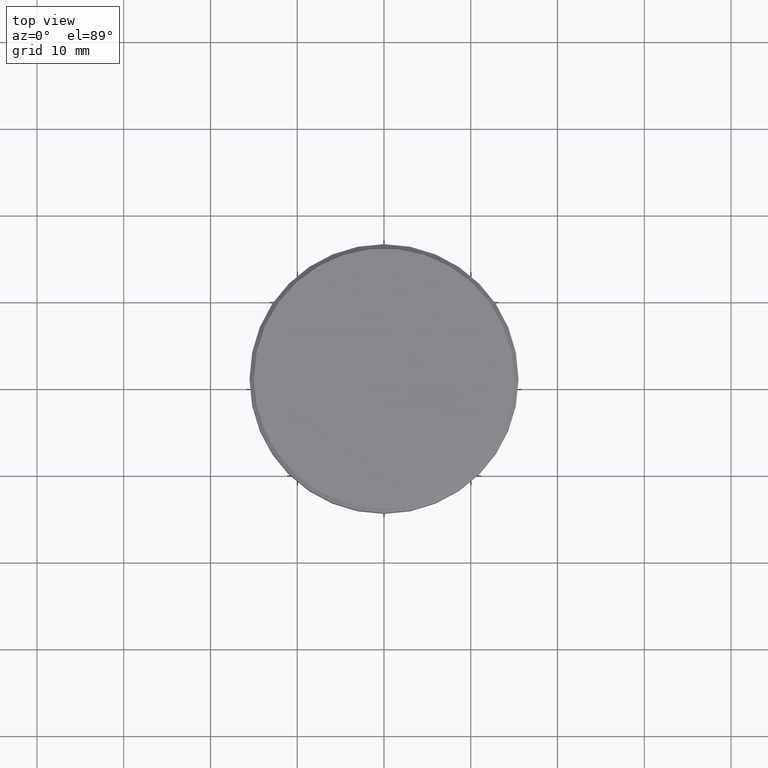
[diagram: clean part render]
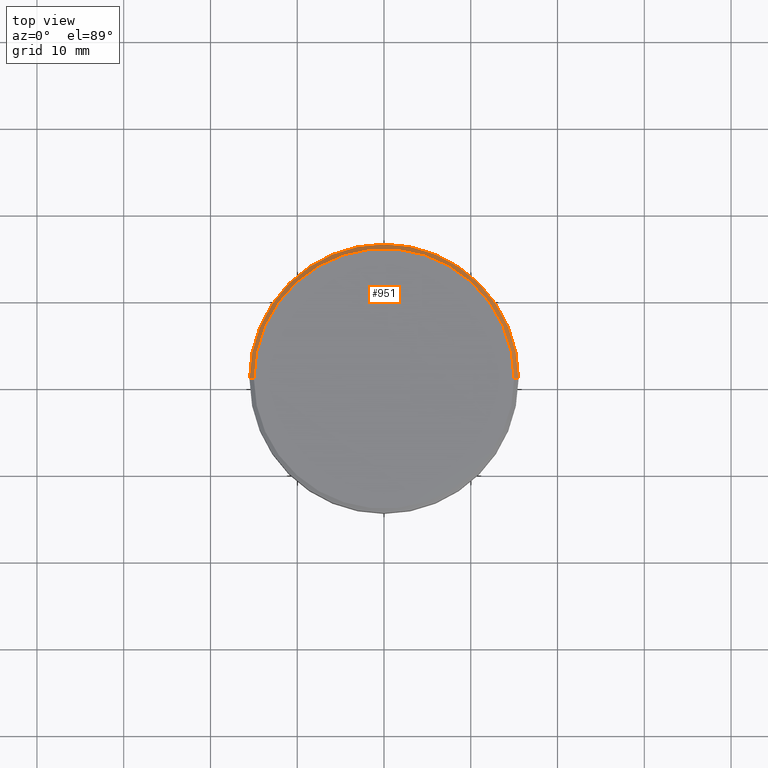
[diagram: same view with one face highlighted and labeled with its STEP entity id]
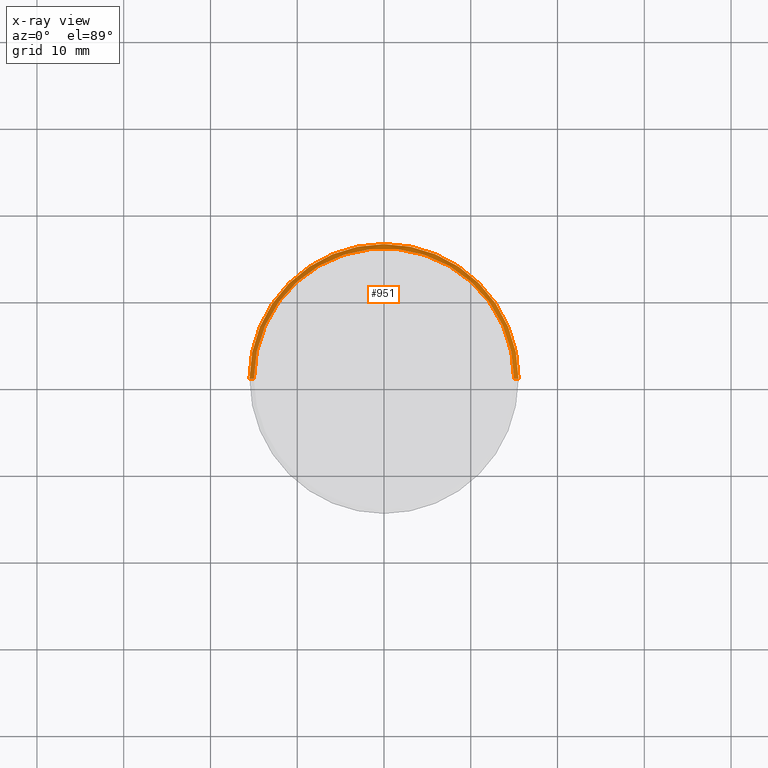
[diagram: x-ray of the same camera — body ghosted, the highlighted face saturated]
A machine part, top view. The second image highlights one B-rep face of the part: STEP entity #951.
The next image is the same camera in x-ray: the body ghosted, the highlighted face saturated — about 0% of this face is hidden behind the body in this view.
In plain terms, the highlighted conical surface has half-angle 45 deg.
Its self-contained STEP definition (entity closure, byte-faithful):
#50 = EDGE_CURVE ( 'NONE', #1007, #907, #1061, .T. ) ;
#87 = DIRECTION ( 'NONE',  ( 0.000000000000000000, 0.000000000000000000, -1.000000000000000000 ) ) ;
#103 = FACE_OUTER_BOUND ( 'NONE', #547, .T. ) ;
#120 = ORIENTED_EDGE ( 'NONE', *, *, #916, .F. ) ;
#129 = AXIS2_PLACEMENT_3D ( 'NONE', #691, #133, #246 ) ;
#132 = CARTESIAN_POINT ( 'NONE',  ( 15.00000000000000000, 1.836970198721029589E-15, 0.000000000000000000 ) ) ;
#133 = DIRECTION ( 'NONE',  ( 0.000000000000000000, 0.000000000000000000, -1.000000000000000000 ) ) ;
#203 = CARTESIAN_POINT ( 'NONE',  ( 15.00000000000000000, 1.867586368699713376E-15, 0.000000000000000000 ) ) ;
#207 = EDGE_CURVE ( 'NONE', #1003, #1007, #294, .T. ) ;
#246 = DIRECTION ( 'NONE',  ( 1.000000000000000000, 0.000000000000000000, 0.000000000000000000 ) ) ;
#293 = ORIENTED_EDGE ( 'NONE', *, *, #50, .F. ) ;
#294 = LINE ( 'NONE', #378, #825 ) ;
#350 = EDGE_CURVE ( 'NONE', #1039, #907, #410, .T. ) ;
#371 = CARTESIAN_POINT ( 'NONE',  ( 0.000000000000000000, 0.000000000000000000, 0.000000000000000000 ) ) ;
#378 = CARTESIAN_POINT ( 'NONE',  ( -15.00000000000000000, 0.000000000000000000, 0.000000000000000000 ) ) ;
#410 = LINE ( 'NONE', #132, #902 ) ;
#420 = CARTESIAN_POINT ( 'NONE',  ( 15.50000000000000000, 0.000000000000000000, -0.5000000000000125455 ) ) ;
#531 = AXIS2_PLACEMENT_3D ( 'NONE', #371, #87, #727 ) ;
#547 = EDGE_LOOP ( 'NONE', ( #120, #915, #293, #1147 ) ) ;
#633 = DIRECTION ( 'NONE',  ( 1.000000000000000000, 0.000000000000000000, 0.000000000000000000 ) ) ;
#650 = DIRECTION ( 'NONE',  ( -0.000000000000000000, -0.000000000000000000, 1.000000000000000000 ) ) ;
#659 = CARTESIAN_POINT ( 'NONE',  ( -15.00000000000000000, 0.000000000000000000, 0.000000000000000000 ) ) ;
#678 = CARTESIAN_POINT ( 'NONE',  ( -15.50000000000000000, 1.898202538678397557E-15, -0.5000000000000125455 ) ) ;
#691 = CARTESIAN_POINT ( 'NONE',  ( 0.000000000000000000, 0.000000000000000000, -0.5000000000000125455 ) ) ;
#727 = DIRECTION ( 'NONE',  ( -1.000000000000000000, 0.000000000000000000, 0.000000000000000000 ) ) ;
#760 = DIRECTION ( 'NONE',  ( 0.7071067811865389130, 8.659560562354828088E-17, -0.7071067811865561215 ) ) ;
#825 = VECTOR ( 'NONE', #844, 1000.000000000000000 ) ;
#844 = DIRECTION ( 'NONE',  ( -0.7071067811865389130, 0.000000000000000000, -0.7071067811865561215 ) ) ;
#878 = AXIS2_PLACEMENT_3D ( 'NONE', #1063, #650, #633 ) ;
#902 = VECTOR ( 'NONE', #760, 1000.000000000000000 ) ;
#907 = VERTEX_POINT ( 'NONE', #420 ) ;
#915 = ORIENTED_EDGE ( 'NONE', *, *, #350, .T. ) ;
#916 = EDGE_CURVE ( 'NONE', #1039, #1003, #1158, .T. ) ;
#951 = ADVANCED_FACE ( 'NONE', ( #103 ), #974, .T. ) ;
#974 = CONICAL_SURFACE ( 'NONE', #531, 15.00000000000000000, 0.7853981633974361776 ) ;
#1003 = VERTEX_POINT ( 'NONE', #659 ) ;
#1007 = VERTEX_POINT ( 'NONE', #678 ) ;
#1039 = VERTEX_POINT ( 'NONE', #203 ) ;
#1061 = CIRCLE ( 'NONE', #129, 15.50000000000000000 ) ;
#1063 = CARTESIAN_POINT ( 'NONE',  ( 0.000000000000000000, 0.000000000000000000, 0.000000000000000000 ) ) ;
#1147 = ORIENTED_EDGE ( 'NONE', *, *, #207, .F. ) ;
#1158 = CIRCLE ( 'NONE', #878, 15.00000000000000000 ) ;